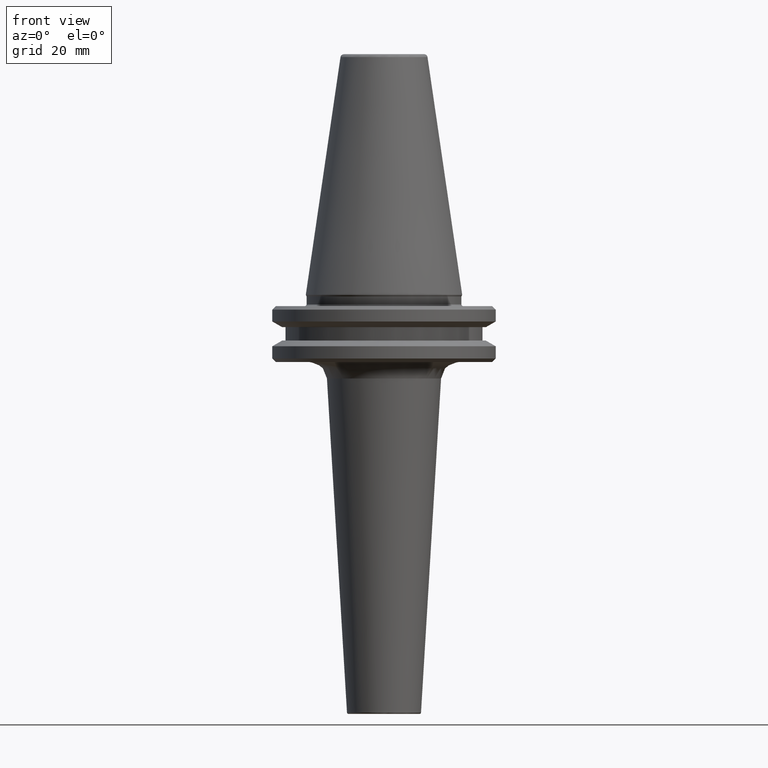
[diagram: clean part render]
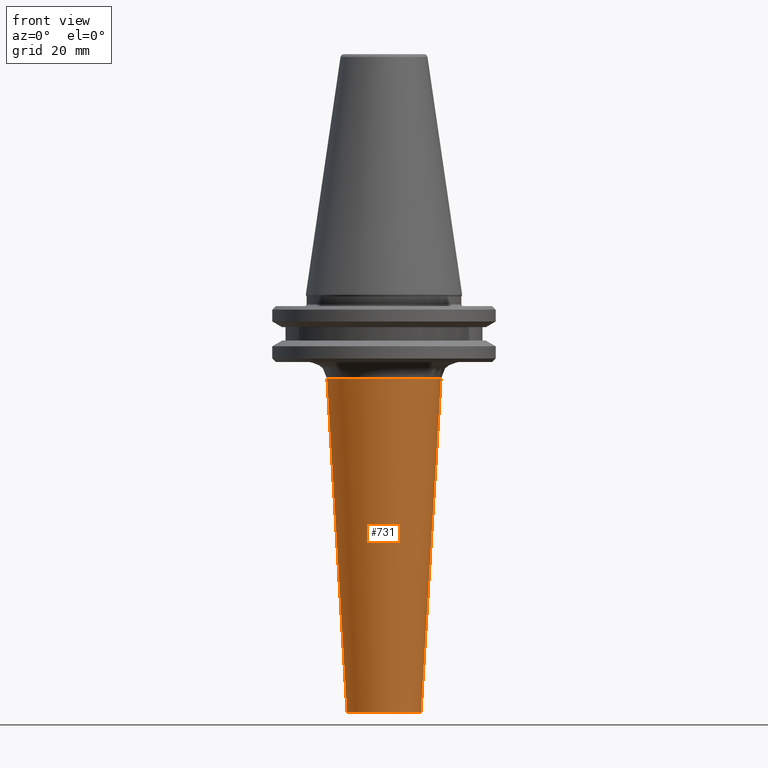
[diagram: same view with one face highlighted and labeled with its STEP entity id]
A machine part, front view. The second image highlights one B-rep face of the part: STEP entity #731.
In plain terms, the highlighted conical surface has half-angle 3.434 deg.
Its self-contained STEP definition (entity closure, byte-faithful):
#72 = DIRECTION ( 'NONE',  ( 0.0000000000000000000, -0.0000000000000000000, 1.000000000000000000 ) ) ;
#100 = CARTESIAN_POINT ( 'NONE',  ( -10.52256258502252900, 1.637385240270137000E-015, -118.7239569162911700 ) ) ;
#116 = VECTOR ( 'NONE', #938, 1000.000000000000000 ) ;
#126 = EDGE_CURVE ( 'NONE', #211, #1411, #179, .T. ) ;
#129 = CARTESIAN_POINT ( 'NONE',  ( 0.0000000000000000000, 0.0000000000000000000, -23.80053854636024400 ) ) ;
#144 = CIRCLE ( 'NONE', #912, 10.52256258502252700 ) ;
#179 = LINE ( 'NONE', #765, #116 ) ;
#192 = DIRECTION ( 'NONE',  ( 0.0000000000000000000, 0.0000000000000000000, 1.000000000000000000 ) ) ;
#211 = VERTEX_POINT ( 'NONE', #100 ) ;
#221 = AXIS2_PLACEMENT_3D ( 'NONE', #1362, #637, #1475 ) ;
#234 = ORIENTED_EDGE ( 'NONE', *, *, #1424, .T. ) ;
#318 = VERTEX_POINT ( 'NONE', #1486 ) ;
#435 = AXIS2_PLACEMENT_3D ( 'NONE', #129, #72, #869 ) ;
#535 = CARTESIAN_POINT ( 'NONE',  ( 16.21796768721838700, 0.0000000000000000000, -23.80053854636024400 ) ) ;
#540 = ORIENTED_EDGE ( 'NONE', *, *, #1469, .T. ) ;
#637 = DIRECTION ( 'NONE',  ( -0.0000000000000000000, -0.0000000000000000000, -1.000000000000000000 ) ) ;
#731 = ADVANCED_FACE ( 'NONE', ( #915 ), #1478, .T. ) ;
#741 = EDGE_CURVE ( 'NONE', #211, #318, #144, .T. ) ;
#765 = CARTESIAN_POINT ( 'NONE',  ( -16.21796768721838700, 1.986128221682719700E-015, -23.80053854636024400 ) ) ;
#869 = DIRECTION ( 'NONE',  ( 1.000000000000000000, 0.0000000000000000000, 0.0000000000000000000 ) ) ;
#875 = CARTESIAN_POINT ( 'NONE',  ( 0.0000000000000000000, 0.0000000000000000000, -118.7239569162911700 ) ) ;
#912 = AXIS2_PLACEMENT_3D ( 'NONE', #875, #192, #1001 ) ;
#915 = FACE_OUTER_BOUND ( 'NONE', #1128, .T. ) ;
#938 = DIRECTION ( 'NONE',  ( -0.05989229072794672500, 7.334690213358265000E-018, 0.9982048454657787000 ) ) ;
#993 = ORIENTED_EDGE ( 'NONE', *, *, #741, .T. ) ;
#1001 = DIRECTION ( 'NONE',  ( 1.000000000000000000, 0.0000000000000000000, -1.318860087139576400E-015 ) ) ;
#1076 = CARTESIAN_POINT ( 'NONE',  ( -16.21796768721838700, 1.986128221682719300E-015, -23.80053854636027200 ) ) ;
#1128 = EDGE_LOOP ( 'NONE', ( #1373, #993, #540, #234 ) ) ;
#1173 = CARTESIAN_POINT ( 'NONE',  ( 16.21796768721838700, 0.0000000000000000000, -23.80053854636027200 ) ) ;
#1258 = LINE ( 'NONE', #535, #1294 ) ;
#1294 = VECTOR ( 'NONE', #1379, 1000.000000000000000 ) ;
#1362 = CARTESIAN_POINT ( 'NONE',  ( 0.0000000000000000000, 0.0000000000000000000, -23.80053854636027200 ) ) ;
#1371 = VERTEX_POINT ( 'NONE', #1173 ) ;
#1373 = ORIENTED_EDGE ( 'NONE', *, *, #126, .F. ) ;
#1379 = DIRECTION ( 'NONE',  ( 0.05989229072794672500, 0.0000000000000000000, 0.9982048454657787000 ) ) ;
#1404 = CIRCLE ( 'NONE', #221, 16.21796768721838700 ) ;
#1411 = VERTEX_POINT ( 'NONE', #1076 ) ;
#1424 = EDGE_CURVE ( 'NONE', #1371, #1411, #1404, .T. ) ;
#1469 = EDGE_CURVE ( 'NONE', #318, #1371, #1258, .T. ) ;
#1475 = DIRECTION ( 'NONE',  ( 1.000000000000000000, 0.0000000000000000000, 8.557044924162563600E-016 ) ) ;
#1478 = CONICAL_SURFACE ( 'NONE', #435, 16.21796768721838700, 0.05992815512120788800 ) ;
#1486 = CARTESIAN_POINT ( 'NONE',  ( 10.52256258502252700, 0.0000000000000000000, -118.7239569162911900 ) ) ;